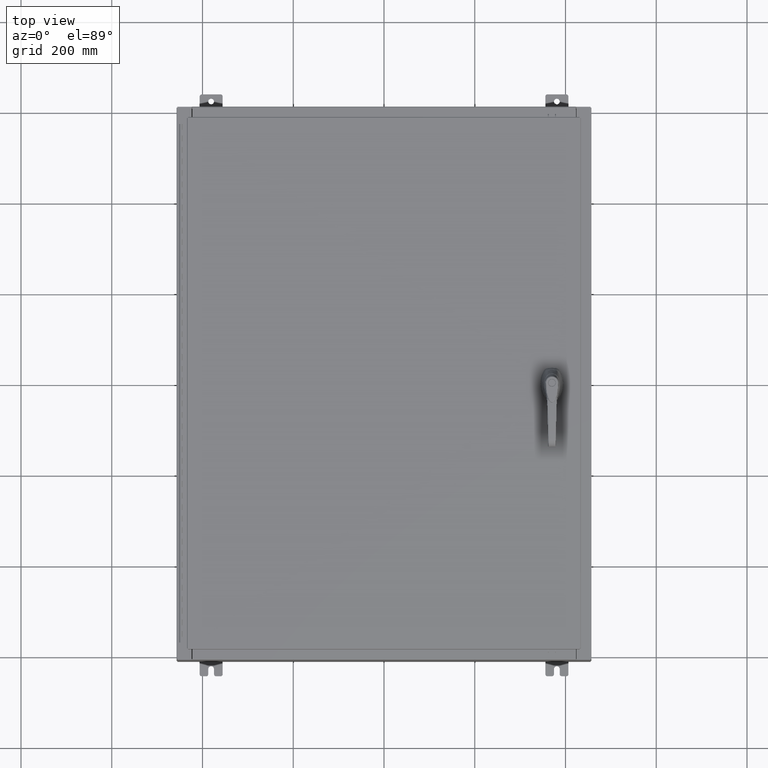
[diagram: clean part render]
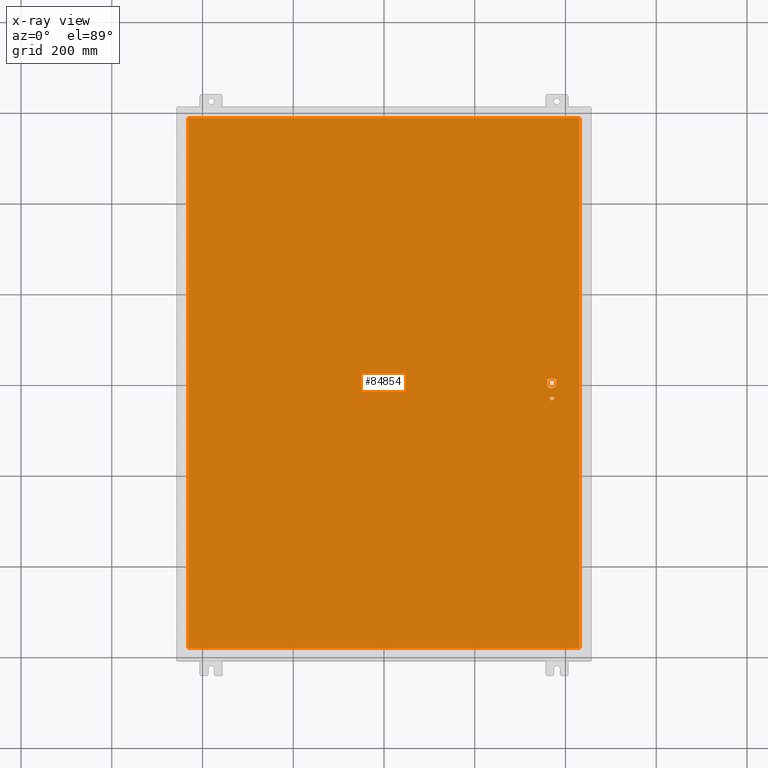
[diagram: x-ray — body ghosted, one internal face saturated and labeled with its STEP entity id]
A machine part, top view, then the same camera in x-ray: the body is ghosted and one INTERNAL B-rep face — a face not visible from any outside direction — is saturated and labeled: STEP entity #84854.
In plain terms, the highlighted planar face has unit normal (0, 0, -1).
Its self-contained STEP definition (entity closure, byte-faithful):
#1450 = EDGE_CURVE ( 'NONE', #36580, #35057, #31569, .T. ) ;
#1762 = EDGE_CURVE ( 'NONE', #118423, #4237, #12113, .T. ) ;
#1886 = ORIENTED_EDGE ( 'NONE', *, *, #103613, .T. ) ;
#2639 = ORIENTED_EDGE ( 'NONE', *, *, #38385, .F. ) ;
#3043 = CARTESIAN_POINT ( 'NONE',  ( -16.99029999999999800, -23.00630000000000300, -0.07469999999999804600 ) ) ;
#3709 = ORIENTED_EDGE ( 'NONE', *, *, #100295, .T. ) ;
#4237 = VERTEX_POINT ( 'NONE', #116633 ) ;
#6150 = VERTEX_POINT ( 'NONE', #118085 ) ;
#6182 = ORIENTED_EDGE ( 'NONE', *, *, #133251, .T. ) ;
#6535 = CARTESIAN_POINT ( 'NONE',  ( 14.37777262924369000, -0.4029999999999250300, -0.07470000000000003000 ) ) ;
#6949 = CARTESIAN_POINT ( 'NONE',  ( 0.0000000000000000000, 0.0000000000000000000, -0.07470000000000000300 ) ) ;
#7251 = VERTEX_POINT ( 'NONE', #31614 ) ;
#8109 = DIRECTION ( 'NONE',  ( -1.000000000000000000, -0.0000000000000000000, -0.0000000000000000000 ) ) ;
#8732 = CARTESIAN_POINT ( 'NONE',  ( 14.77822737075630900, 0.4029999999999250300, -0.07470000000000003000 ) ) ;
#9521 = EDGE_CURVE ( 'NONE', #31442, #6150, #124332, .T. ) ;
#10191 = EDGE_LOOP ( 'NONE', ( #126612, #90599, #132812, #2639 ) ) ;
#12113 = LINE ( 'NONE', #103298, #115836 ) ;
#13047 = CARTESIAN_POINT ( 'NONE',  ( 14.57799999999999900, -1.338000000000000100, -0.07470000000000003000 ) ) ;
#15886 = ORIENTED_EDGE ( 'NONE', *, *, #9521, .T. ) ;
#16983 = ORIENTED_EDGE ( 'NONE', *, *, #83961, .F. ) ;
#17099 = LINE ( 'NONE', #70698, #65750 ) ;
#17366 = ORIENTED_EDGE ( 'NONE', *, *, #26655, .T. ) ;
#17813 = DIRECTION ( 'NONE',  ( -0.0000000000000000000, -0.0000000000000000000, 1.000000000000000000 ) ) ;
#18896 = ORIENTED_EDGE ( 'NONE', *, *, #25526, .T. ) ;
#19581 = CARTESIAN_POINT ( 'NONE',  ( 14.37777262924369000, 0.4029999999999252000, -0.07470000000000003000 ) ) ;
#21649 = EDGE_LOOP ( 'NONE', ( #1886, #15886 ) ) ;
#23025 = FACE_BOUND ( 'NONE', #21649, .T. ) ;
#23450 = DIRECTION ( 'NONE',  ( -1.000000000000000000, 0.0000000000000000000, 0.0000000000000000000 ) ) ;
#24704 = AXIS2_PLACEMENT_3D ( 'NONE', #6949, #131100, #27787 ) ;
#25526 = EDGE_CURVE ( 'NONE', #4237, #39580, #28390, .T. ) ;
#26177 = LINE ( 'NONE', #85621, #53705 ) ;
#26311 = CARTESIAN_POINT ( 'NONE',  ( 14.57799999999999900, 0.0000000000000000000, -0.07470000000000003000 ) ) ;
#26655 = EDGE_CURVE ( 'NONE', #134204, #37694, #17099, .T. ) ;
#27787 = DIRECTION ( 'NONE',  ( -1.000000000000000000, 0.0000000000000000000, -0.0000000000000000000 ) ) ;
#28390 = CIRCLE ( 'NONE', #84242, 0.4499999999999168000 ) ;
#28929 = CARTESIAN_POINT ( 'NONE',  ( 16.99029999999999800, 23.00630000000001000, -0.07469999999999804600 ) ) ;
#29704 = AXIS2_PLACEMENT_3D ( 'NONE', #95575, #33469, #105960 ) ;
#30919 = CARTESIAN_POINT ( 'NONE',  ( 16.99029999999999800, 23.00630000000000300, -0.07470000000000000300 ) ) ;
#31442 = VERTEX_POINT ( 'NONE', #109873 ) ;
#31493 = VECTOR ( 'NONE', #8109, 39.37007874015748100 ) ;
#31569 = LINE ( 'NONE', #120308, #55801 ) ;
#31614 = CARTESIAN_POINT ( 'NONE',  ( 14.17500000000007400, 0.2002273707563075900, -0.07470000000000003000 ) ) ;
#32130 = EDGE_CURVE ( 'NONE', #91742, #134204, #116740, .T. ) ;
#33085 = DIRECTION ( 'NONE',  ( -0.0000000000000000000, -0.0000000000000000000, 1.000000000000000000 ) ) ;
#33469 = DIRECTION ( 'NONE',  ( -0.0000000000000000000, -0.0000000000000000000, 1.000000000000000000 ) ) ;
#35057 = VERTEX_POINT ( 'NONE', #30919 ) ;
#36580 = VERTEX_POINT ( 'NONE', #37721 ) ;
#36674 = DIRECTION ( 'NONE',  ( -1.000000000000000000, -1.776356839400246700E-015, 0.0000000000000000000 ) ) ;
#37694 = VERTEX_POINT ( 'NONE', #19581 ) ;
#37721 = CARTESIAN_POINT ( 'NONE',  ( 16.99029999999999800, -23.00630000000000000, -0.07470000000000000300 ) ) ;
#38385 = EDGE_CURVE ( 'NONE', #35057, #104846, #114225, .T. ) ;
#39580 = VERTEX_POINT ( 'NONE', #114847 ) ;
#42293 = EDGE_CURVE ( 'NONE', #7251, #130641, #26177, .T. ) ;
#44976 = ORIENTED_EDGE ( 'NONE', *, *, #1762, .T. ) ;
#45553 = DIRECTION ( 'NONE',  ( 5.457491617345625800E-015, -1.000000000000000000, 0.0000000000000000000 ) ) ;
#49152 = CARTESIAN_POINT ( 'NONE',  ( 14.57799999999999900, 0.0000000000000000000, -0.07470000000000003000 ) ) ;
#50498 = FACE_BOUND ( 'NONE', #57192, .T. ) ;
#51938 = EDGE_CURVE ( 'NONE', #104846, #123482, #54347, .T. ) ;
#53705 = VECTOR ( 'NONE', #127286, 39.37007874015748100 ) ;
#53779 = LINE ( 'NONE', #3043, #105707 ) ;
#54347 = LINE ( 'NONE', #116340, #106274 ) ;
#55600 = CIRCLE ( 'NONE', #111657, 0.4499999999999168000 ) ;
#55801 = VECTOR ( 'NONE', #118351, 39.37007874015748100 ) ;
#57192 = EDGE_LOOP ( 'NONE', ( #18896, #16983, #93962, #17366, #3709, #130906, #6182, #44976 ) ) ;
#59637 = DIRECTION ( 'NONE',  ( -1.000000000000000000, -1.776356839400246700E-015, 0.0000000000000000000 ) ) ;
#65151 = DIRECTION ( 'NONE',  ( 1.000000000000000000, -0.0000000000000000000, -0.0000000000000000000 ) ) ;
#65750 = VECTOR ( 'NONE', #122373, 39.37007874015748100 ) ;
#66076 = CARTESIAN_POINT ( 'NONE',  ( 14.98099999999992700, 8.175868191945441800E-014, -0.07470000000000003000 ) ) ;
#66129 = CARTESIAN_POINT ( 'NONE',  ( -16.99029999999999800, -23.00630000000000000, -0.07470000000000000300 ) ) ;
#70698 = CARTESIAN_POINT ( 'NONE',  ( 0.0000000000000000000, 0.4029999999999252000, -0.07470000000000003000 ) ) ;
#79885 = CARTESIAN_POINT ( 'NONE',  ( 14.57799999999999900, 0.0000000000000000000, -0.07470000000000003000 ) ) ;
#83769 = AXIS2_PLACEMENT_3D ( 'NONE', #26311, #98816, #36674 ) ;
#83961 = EDGE_CURVE ( 'NONE', #91742, #39580, #88050, .T. ) ;
#84242 = AXIS2_PLACEMENT_3D ( 'NONE', #49152, #121748, #59637 ) ;
#84854 = ADVANCED_FACE ( 'NONE', ( #23025, #102410, #50498 ), #89898, .T. ) ;
#85534 = DIRECTION ( 'NONE',  ( -0.0000000000000000000, -0.0000000000000000000, 1.000000000000000000 ) ) ;
#85621 = CARTESIAN_POINT ( 'NONE',  ( 14.17500000000007400, 0.0000000000000000000, -0.07470000000000003000 ) ) ;
#88050 = LINE ( 'NONE', #66076, #112344 ) ;
#89898 = PLANE ( 'NONE',  #24704 ) ;
#90351 = DIRECTION ( 'NONE',  ( -1.000000000000000000, -5.329070518200740300E-015, 0.0000000000000000000 ) ) ;
#90599 = ORIENTED_EDGE ( 'NONE', *, *, #92981, .F. ) ;
#91742 = VERTEX_POINT ( 'NONE', #106159 ) ;
#92095 = CARTESIAN_POINT ( 'NONE',  ( 14.17500000000007400, -0.2002273707563079800, -0.07470000000000003000 ) ) ;
#92981 = EDGE_CURVE ( 'NONE', #123482, #36580, #53779, .T. ) ;
#93962 = ORIENTED_EDGE ( 'NONE', *, *, #32130, .T. ) ;
#95192 = CARTESIAN_POINT ( 'NONE',  ( 14.57799999999999900, 0.0000000000000000000, -0.07470000000000003000 ) ) ;
#95490 = DIRECTION ( 'NONE',  ( 0.0000000000000000000, -1.000000000000000000, 0.0000000000000000000 ) ) ;
#95575 = CARTESIAN_POINT ( 'NONE',  ( 14.57799999999999900, -1.338000000000000100, -0.07470000000000003000 ) ) ;
#98678 = DIRECTION ( 'NONE',  ( 1.000000000000000000, 0.0000000000000000000, 0.0000000000000000000 ) ) ;
#98816 = DIRECTION ( 'NONE',  ( -0.0000000000000000000, -0.0000000000000000000, 1.000000000000000000 ) ) ;
#100295 = EDGE_CURVE ( 'NONE', #37694, #7251, #55600, .T. ) ;
#102410 = FACE_OUTER_BOUND ( 'NONE', #10191, .T. ) ;
#103298 = CARTESIAN_POINT ( 'NONE',  ( 0.0000000000000000000, -0.4029999999999252000, -0.07470000000000003000 ) ) ;
#103613 = EDGE_CURVE ( 'NONE', #6150, #31442, #110450, .T. ) ;
#104846 = VERTEX_POINT ( 'NONE', #116385 ) ;
#105572 = DIRECTION ( 'NONE',  ( -1.000000000000000000, -5.329070518200740300E-015, 0.0000000000000000000 ) ) ;
#105707 = VECTOR ( 'NONE', #65151, 39.37007874015748100 ) ;
#105960 = DIRECTION ( 'NONE',  ( -1.000000000000000000, 0.0000000000000000000, 0.0000000000000000000 ) ) ;
#106159 = CARTESIAN_POINT ( 'NONE',  ( 14.98099999999992700, 0.2002273707563075900, -0.07470000000000003000 ) ) ;
#106274 = VECTOR ( 'NONE', #95490, 39.37007874015748100 ) ;
#109873 = CARTESIAN_POINT ( 'NONE',  ( 14.40649999999999800, -1.338000000000000100, -0.07470000000000003000 ) ) ;
#110450 = CIRCLE ( 'NONE', #118769, 0.1715000000000011500 ) ;
#111657 = AXIS2_PLACEMENT_3D ( 'NONE', #79885, #17813, #90351 ) ;
#112344 = VECTOR ( 'NONE', #45553, 39.37007874015748100 ) ;
#114225 = LINE ( 'NONE', #28929, #31493 ) ;
#114847 = CARTESIAN_POINT ( 'NONE',  ( 14.98099999999992700, -0.2002273707563067300, -0.07470000000000003000 ) ) ;
#115836 = VECTOR ( 'NONE', #98678, 39.37007874015748100 ) ;
#116340 = CARTESIAN_POINT ( 'NONE',  ( -16.99029999999999400, 23.00630000000001000, -0.07470000000000129300 ) ) ;
#116385 = CARTESIAN_POINT ( 'NONE',  ( -16.99029999999999400, 23.00630000000000300, -0.07470000000000000300 ) ) ;
#116633 = CARTESIAN_POINT ( 'NONE',  ( 14.77822737075630900, -0.4029999999999252000, -0.07470000000000003000 ) ) ;
#116740 = CIRCLE ( 'NONE', #130658, 0.4499999999999168000 ) ;
#118085 = CARTESIAN_POINT ( 'NONE',  ( 14.74950000000000100, -1.338000000000000100, -0.07470000000000003000 ) ) ;
#118351 = DIRECTION ( 'NONE',  ( 0.0000000000000000000, 1.000000000000000000, 0.0000000000000000000 ) ) ;
#118423 = VERTEX_POINT ( 'NONE', #6535 ) ;
#118769 = AXIS2_PLACEMENT_3D ( 'NONE', #13047, #85534, #23450 ) ;
#120308 = CARTESIAN_POINT ( 'NONE',  ( 16.99029999999999800, -23.00630000000000300, -0.07470000000000019700 ) ) ;
#121748 = DIRECTION ( 'NONE',  ( -0.0000000000000000000, -0.0000000000000000000, 1.000000000000000000 ) ) ;
#122373 = DIRECTION ( 'NONE',  ( -1.000000000000000000, 0.0000000000000000000, 0.0000000000000000000 ) ) ;
#123482 = VERTEX_POINT ( 'NONE', #66129 ) ;
#124332 = CIRCLE ( 'NONE', #29704, 0.1715000000000011500 ) ;
#126612 = ORIENTED_EDGE ( 'NONE', *, *, #1450, .F. ) ;
#127286 = DIRECTION ( 'NONE',  ( 0.0000000000000000000, -1.000000000000000000, 0.0000000000000000000 ) ) ;
#127484 = CIRCLE ( 'NONE', #83769, 0.4499999999999168000 ) ;
#130641 = VERTEX_POINT ( 'NONE', #92095 ) ;
#130658 = AXIS2_PLACEMENT_3D ( 'NONE', #95192, #33085, #105572 ) ;
#130906 = ORIENTED_EDGE ( 'NONE', *, *, #42293, .T. ) ;
#131100 = DIRECTION ( 'NONE',  ( 0.0000000000000000000, 0.0000000000000000000, -1.000000000000000000 ) ) ;
#132812 = ORIENTED_EDGE ( 'NONE', *, *, #51938, .F. ) ;
#133251 = EDGE_CURVE ( 'NONE', #130641, #118423, #127484, .T. ) ;
#134204 = VERTEX_POINT ( 'NONE', #8732 ) ;